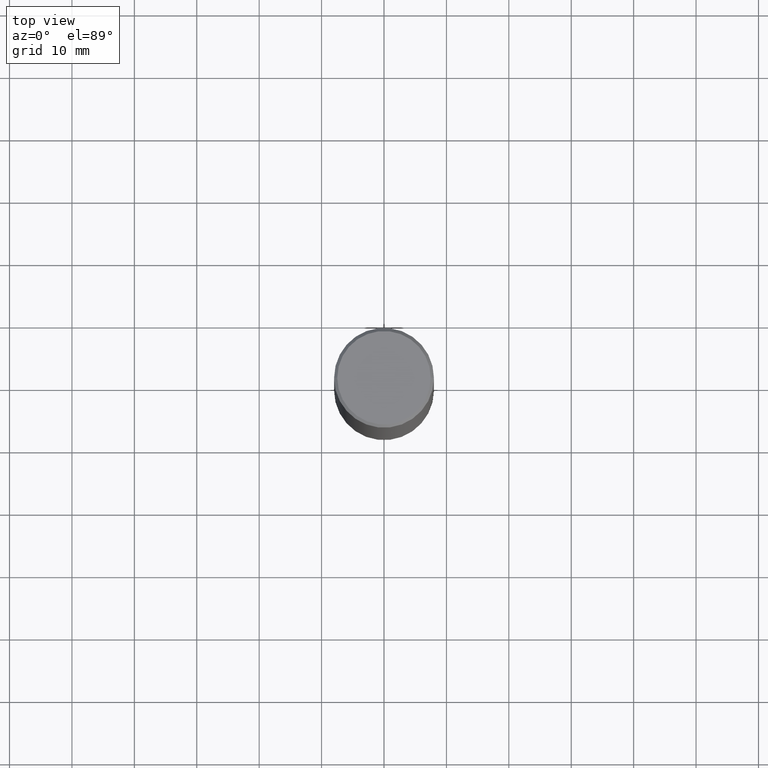
[diagram: clean part render]
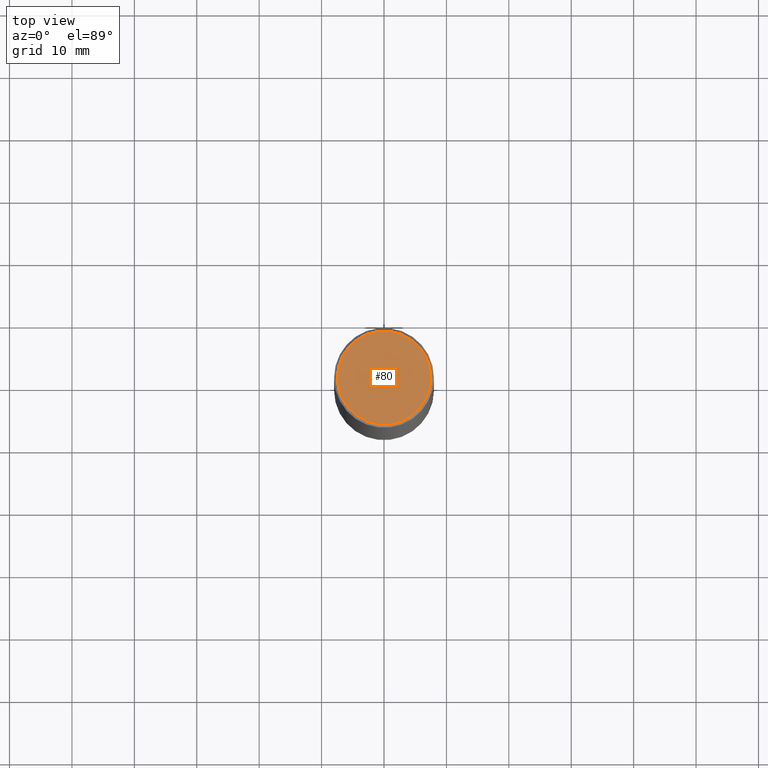
[diagram: same view with one face highlighted and labeled with its STEP entity id]
A machine part, top view. The second image highlights one B-rep face of the part: STEP entity #80.
In plain terms, the highlighted planar face has unit normal (0, -0, -1).
Its self-contained STEP definition (entity closure, byte-faithful):
#15 = DIRECTION ( 'NONE',  ( -2.445468806185136597E-29, 3.491481338843145583E-15, 1.000000000000000000 ) ) ;
#23 = CARTESIAN_POINT ( 'NONE',  ( 2.059624841783561302E-15, 0.2949499999999996014, -8.889515087184707120E-16 ) ) ;
#25 = AXIS2_PLACEMENT_3D ( 'NONE', #23, #137, #208 ) ;
#36 = AXIS2_PLACEMENT_3D ( 'NONE', #367, #203, #334 ) ;
#66 = VERTEX_POINT ( 'NONE', #318 ) ;
#80 = ADVANCED_FACE ( 'NONE', ( #244 ), #112, .F. ) ;
#89 = CIRCLE ( 'NONE', #36, 0.2949499999999996014 ) ;
#112 = PLANE ( 'NONE',  #25 ) ;
#113 = EDGE_CURVE ( 'NONE', #163, #66, #89, .T. ) ;
#126 = ORIENTED_EDGE ( 'NONE', *, *, #376, .T. ) ;
#137 = DIRECTION ( 'NONE',  ( 2.438088387897960049E-29, -3.491481338843145188E-15, -1.000000000000000000 ) ) ;
#163 = VERTEX_POINT ( 'NONE', #226 ) ;
#165 = CARTESIAN_POINT ( 'NONE',  ( -6.889419334612450925E-45, 9.836264924510951028E-31, 2.817218243466271259E-16 ) ) ;
#193 = DIRECTION ( 'NONE',  ( 1.000000000000000000, -6.982962677686265922E-15, 4.874125435057328359E-29 ) ) ;
#196 = EDGE_LOOP ( 'NONE', ( #289, #126 ) ) ;
#203 = DIRECTION ( 'NONE',  ( -2.445468806185136597E-29, 3.491481338843145583E-15, 1.000000000000000000 ) ) ;
#208 = DIRECTION ( 'NONE',  ( -1.000000000000000000, 6.982962677686265922E-15, -4.876176775795935793E-29 ) ) ;
#226 = CARTESIAN_POINT ( 'NONE',  ( -0.2949499999999996014, 2.094539655171994135E-15, 2.817218243466126306E-16 ) ) ;
#244 = FACE_OUTER_BOUND ( 'NONE', #196, .T. ) ;
#289 = ORIENTED_EDGE ( 'NONE', *, *, #113, .T. ) ;
#318 = CARTESIAN_POINT ( 'NONE',  ( 0.2949499999999996014, -2.127023677808857708E-15, 2.817218243466417691E-16 ) ) ;
#327 = AXIS2_PLACEMENT_3D ( 'NONE', #165, #15, #193 ) ;
#334 = DIRECTION ( 'NONE',  ( 1.000000000000000000, -6.982962677686265922E-15, 4.874125435057328359E-29 ) ) ;
#367 = CARTESIAN_POINT ( 'NONE',  ( -6.889419334612450925E-45, 9.836264924510951028E-31, 2.817218243466271259E-16 ) ) ;
#376 = EDGE_CURVE ( 'NONE', #66, #163, #389, .T. ) ;
#389 = CIRCLE ( 'NONE', #327, 0.2949499999999996014 ) ;